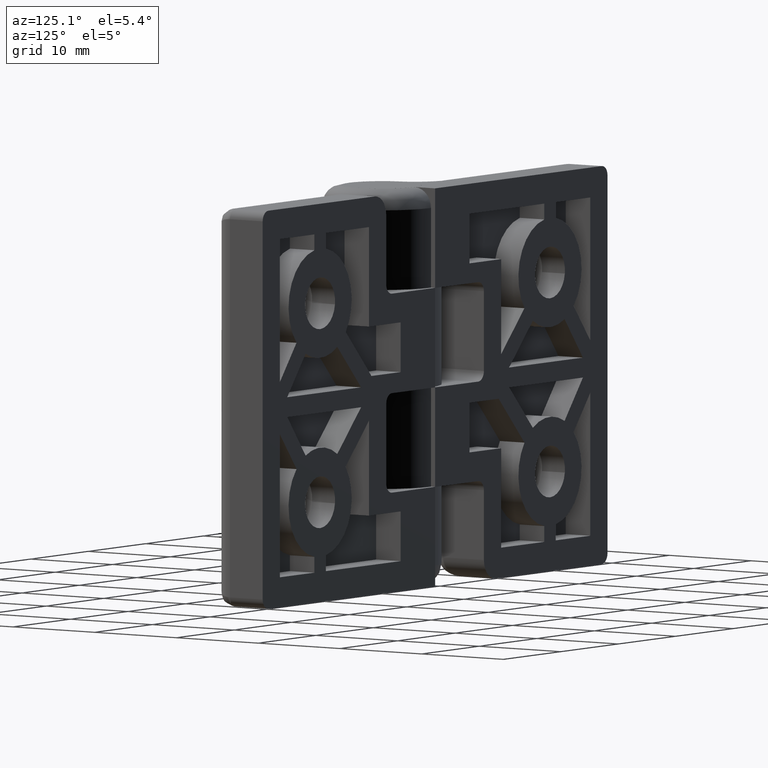
[diagram: clean part render]
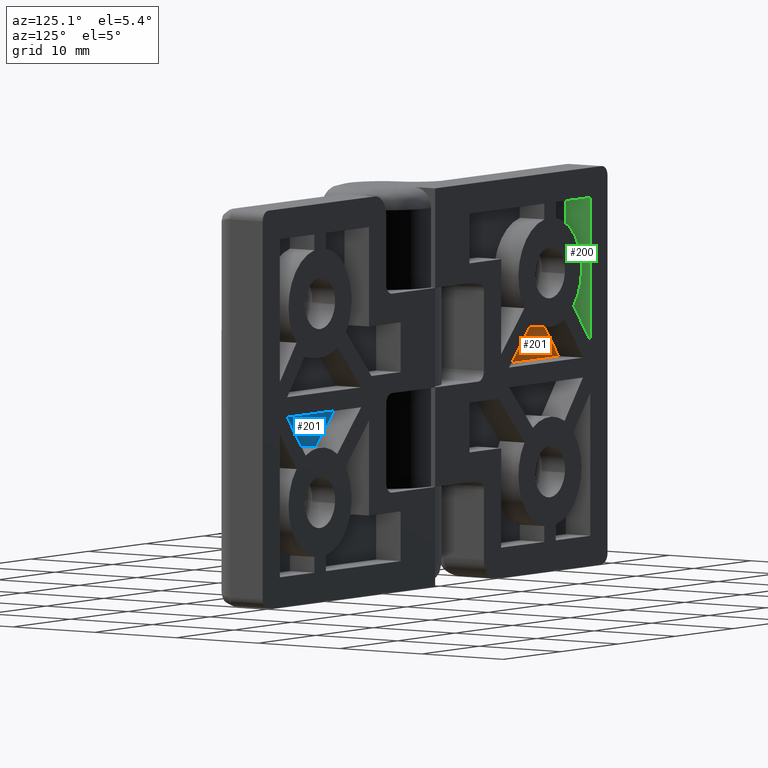
[diagram: same view with three faces highlighted in distinct colors, each labeled with its STEP entity id]
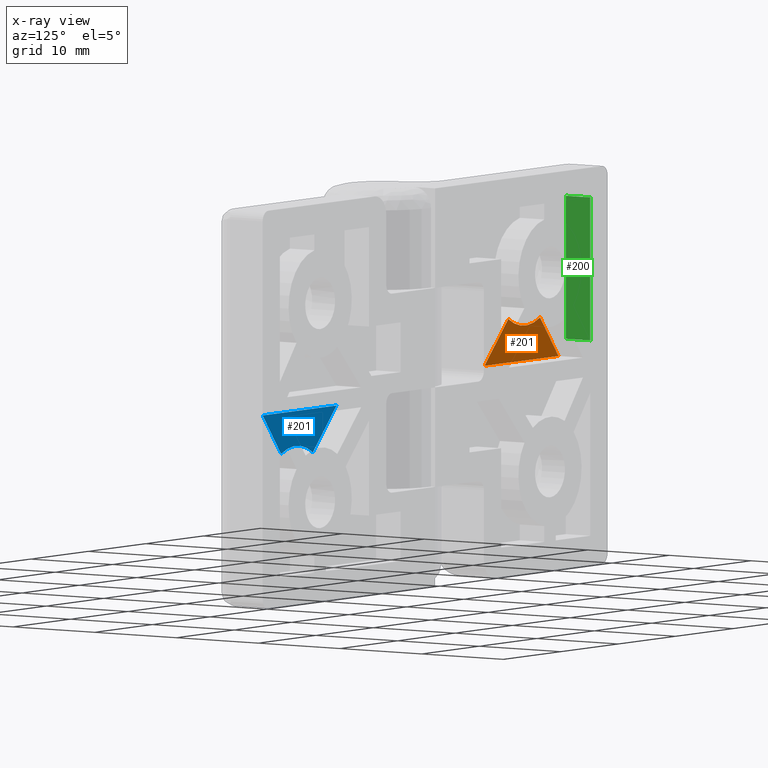
[diagram: x-ray of the same camera — body ghosted, the three highlighted faces saturated]
A machine part, auxiliary view with three faces highlighted in distinct colors.
The next image is the same camera in x-ray (body ghosted, the three faces saturated) — at least one of them is partly hidden behind the body in this view.
Their STEP definitions:

[orange] entity #201 — the highlighted planar face has unit normal (0, 1, 0).
#201=ADVANCED_FACE('',(#611),#610,.T.);
#610=PLANE('',#1514);
#611=FACE_OUTER_BOUND('',#1515,.T.);
#1511=CARTESIAN_POINT('',(1.15897261854E+01,3.50000000000E+00,1.94381451669E+01));
#1512=DIRECTION('',(-0.00000000000E+00,1.00000000000E+00,0.00000000000E+00));
#1513=DIRECTION('',(1.00000000000E+00,0.00000000000E+00,0.00000000000E+00));
#1514=AXIS2_PLACEMENT_3D('',#1511,#1512,#1513);
#1515=EDGE_LOOP('',(#2195,#2196,#2197,#2198));
#2195=ORIENTED_EDGE('',*,*,#2671,.T.);
#2196=ORIENTED_EDGE('',*,*,#2672,.F.);
#2197=ORIENTED_EDGE('',*,*,#2673,.F.);
#2198=ORIENTED_EDGE('',*,*,#2674,.F.);
#2671=EDGE_CURVE('',#3528,#3529,#3530,.T.);
#2672=EDGE_CURVE('',#3536,#3529,#3537,.T.);
#2673=EDGE_CURVE('',#3543,#3536,#3544,.T.);
#2674=EDGE_CURVE('',#3528,#3543,#3550,.T.);
#3528=VERTEX_POINT('',#5037);
#3529=VERTEX_POINT('',#5038);
#3530=CIRCLE('',#5042,5.50000000000E+00);
#3536=VERTEX_POINT('',#5043);
#3537=LINE('',#5044,#5045);
#3543=VERTEX_POINT('',#5047);
#3544=LINE('',#5048,#5049);
#3550=LINE('',#5051,#5052);
#5037=CARTESIAN_POINT('',(2.25310393258E+01,3.50000000000E+00,1.48830154548E+01));
#5038=CARTESIAN_POINT('',(1.70135286200E+01,3.50000000000E+00,1.46185483323E+01));
#5039=CARTESIAN_POINT('',(2.00000000000E+01,3.50000000000E+00,1.00000000001E+01));
#5040=DIRECTION('',(1.51567272932E-16,-1.00000000000E+00,4.67111470759E-16));
#5041=DIRECTION('',(-4.60188968327E-01,-4.84460956200E-16,-8.87820991771E-01));
#5042=AXIS2_PLACEMENT_3D('',#5039,#5040,#5041);
#5043=CARTESIAN_POINT('',(1.28754909337E+01,3.50000000000E+00,1.90000000001E+01));
#5044=CARTESIAN_POINT('',(1.28754909337E+01,3.50000000000E+00,1.90000000001E+01));
#5045=VECTOR('',#5046,6.02664704550E+00);
#5046=DIRECTION('',(6.86623532964E-01,0.00000000000E+00,-7.27013152550E-01));
#5047=CARTESIAN_POINT('',(2.57331384166E+01,3.50000000000E+00,1.90000000001E+01));
#5048=CARTESIAN_POINT('',(2.57331384166E+01,3.50000000000E+00,1.90000000001E+01));
#5049=VECTOR('',#5050,1.28576474829E+01);
#5050=DIRECTION('',(-1.00000000000E+00,0.00000000000E+00,7.73671724465E-15));
#5051=CARTESIAN_POINT('',(2.25310393258E+01,3.50000000000E+00,1.48830154548E+01));
#5052=VECTOR('',#5053,5.21564956002E+00);
#5053=DIRECTION('',(6.13940613515E-01,0.00000000000E+00,7.89352217376E-01));

[blue] entity #201 — the highlighted planar face has unit normal (0, 1, 0).
#201=ADVANCED_FACE('',(#611),#610,.T.);
#610=PLANE('',#1514);
#611=FACE_OUTER_BOUND('',#1515,.T.);
#1511=CARTESIAN_POINT('',(1.15897261854E+01,3.50000000000E+00,1.94381451669E+01));
#1512=DIRECTION('',(-0.00000000000E+00,1.00000000000E+00,0.00000000000E+00));
#1513=DIRECTION('',(1.00000000000E+00,0.00000000000E+00,0.00000000000E+00));
#1514=AXIS2_PLACEMENT_3D('',#1511,#1512,#1513);
#1515=EDGE_LOOP('',(#2195,#2196,#2197,#2198));
#2195=ORIENTED_EDGE('',*,*,#2671,.T.);
#2196=ORIENTED_EDGE('',*,*,#2672,.F.);
#2197=ORIENTED_EDGE('',*,*,#2673,.F.);
#2198=ORIENTED_EDGE('',*,*,#2674,.F.);
#2671=EDGE_CURVE('',#3528,#3529,#3530,.T.);
#2672=EDGE_CURVE('',#3536,#3529,#3537,.T.);
#2673=EDGE_CURVE('',#3543,#3536,#3544,.T.);
#2674=EDGE_CURVE('',#3528,#3543,#3550,.T.);
#3528=VERTEX_POINT('',#5037);
#3529=VERTEX_POINT('',#5038);
#3530=CIRCLE('',#5042,5.50000000000E+00);
#3536=VERTEX_POINT('',#5043);
#3537=LINE('',#5044,#5045);
#3543=VERTEX_POINT('',#5047);
#3544=LINE('',#5048,#5049);
#3550=LINE('',#5051,#5052);
#5037=CARTESIAN_POINT('',(2.25310393258E+01,3.50000000000E+00,1.48830154548E+01));
#5038=CARTESIAN_POINT('',(1.70135286200E+01,3.50000000000E+00,1.46185483323E+01));
#5039=CARTESIAN_POINT('',(2.00000000000E+01,3.50000000000E+00,1.00000000001E+01));
#5040=DIRECTION('',(1.51567272932E-16,-1.00000000000E+00,4.67111470759E-16));
#5041=DIRECTION('',(-4.60188968327E-01,-4.84460956200E-16,-8.87820991771E-01));
#5042=AXIS2_PLACEMENT_3D('',#5039,#5040,#5041);
#5043=CARTESIAN_POINT('',(1.28754909337E+01,3.50000000000E+00,1.90000000001E+01));
#5044=CARTESIAN_POINT('',(1.28754909337E+01,3.50000000000E+00,1.90000000001E+01));
#5045=VECTOR('',#5046,6.02664704550E+00);
#5046=DIRECTION('',(6.86623532964E-01,0.00000000000E+00,-7.27013152550E-01));
#5047=CARTESIAN_POINT('',(2.57331384166E+01,3.50000000000E+00,1.90000000001E+01));
#5048=CARTESIAN_POINT('',(2.57331384166E+01,3.50000000000E+00,1.90000000001E+01));
#5049=VECTOR('',#5050,1.28576474829E+01);
#5050=DIRECTION('',(-1.00000000000E+00,0.00000000000E+00,7.73671724465E-15));
#5051=CARTESIAN_POINT('',(2.25310393258E+01,3.50000000000E+00,1.48830154548E+01));
#5052=VECTOR('',#5053,5.21564956002E+00);
#5053=DIRECTION('',(6.13940613515E-01,0.00000000000E+00,7.89352217376E-01));

[green] entity #200 — the highlighted planar face has unit normal (1, 0, 0).
#200=ADVANCED_FACE('',(#601),#600,.T.);
#600=PLANE('',#1509);
#601=FACE_OUTER_BOUND('',#1510,.T.);
#1506=CARTESIAN_POINT('',(2.70000000000E+01,3.20000000000E+00,1.56288220358E+00));
#1507=DIRECTION('',(-1.00000000000E+00,0.00000000000E+00,0.00000000000E+00));
#1508=DIRECTION('',(0.00000000000E+00,0.00000000000E+00,1.00000000000E+00));
#1509=AXIS2_PLACEMENT_3D('',#1506,#1507,#1508);
#1510=EDGE_LOOP('',(#2191,#2192,#2193,#2194));
#2191=ORIENTED_EDGE('',*,*,#2670,.F.);
#2192=ORIENTED_EDGE('',*,*,#2663,.F.);
#2193=ORIENTED_EDGE('',*,*,#2656,.T.);
#2194=ORIENTED_EDGE('',*,*,#2669,.T.);
#2656=EDGE_CURVE('',#3428,#3429,#3430,.T.);
#2663=EDGE_CURVE('',#3428,#3464,#3477,.T.);
#2669=EDGE_CURVE('',#3429,#3509,#3516,.T.);
#2670=EDGE_CURVE('',#3464,#3509,#3522,.T.);
#3428=VERTEX_POINT('',#4980);
#3429=VERTEX_POINT('',#4981);
#3430=LINE('',#4982,#4983);
#3464=VERTEX_POINT('',#5002);
#3477=LINE('',#5009,#5010);
#3509=VERTEX_POINT('',#5027);
#3516=LINE('',#5031,#5032);
#3522=LINE('',#5034,#5035);
#4980=CARTESIAN_POINT('',(2.70000000000E+01,3.50000000000E+00,3.00000000000E+00));
#4981=CARTESIAN_POINT('',(2.70000000000E+01,3.50000000000E+00,1.73711779642E+01));
#4982=CARTESIAN_POINT('',(2.70000000000E+01,3.50000000000E+00,3.00000000000E+00));
#4983=VECTOR('',#4984,1.43711779642E+01);
#4984=DIRECTION('',(0.00000000000E+00,0.00000000000E+00,1.00000000000E+00));
#5002=CARTESIAN_POINT('',(2.70000000000E+01,6.50000000000E+00,3.00000000000E+00));
#5009=CARTESIAN_POINT('',(2.70000000000E+01,3.50000000000E+00,3.00000000000E+00));
#5010=VECTOR('',#5011,3.00000000000E+00);
#5011=DIRECTION('',(0.00000000000E+00,1.00000000000E+00,0.00000000000E+00));
#5027=CARTESIAN_POINT('',(2.70000000000E+01,6.50000000000E+00,1.73711779642E+01));
#5031=CARTESIAN_POINT('',(2.70000000000E+01,3.50000000000E+00,1.73711779642E+01));
#5032=VECTOR('',#5033,3.00000000000E+00);
#5033=DIRECTION('',(0.00000000000E+00,1.00000000000E+00,0.00000000000E+00));
#5034=CARTESIAN_POINT('',(2.70000000000E+01,6.50000000000E+00,3.00000000000E+00));
#5035=VECTOR('',#5036,1.43711779642E+01);
#5036=DIRECTION('',(0.00000000000E+00,0.00000000000E+00,1.00000000000E+00));